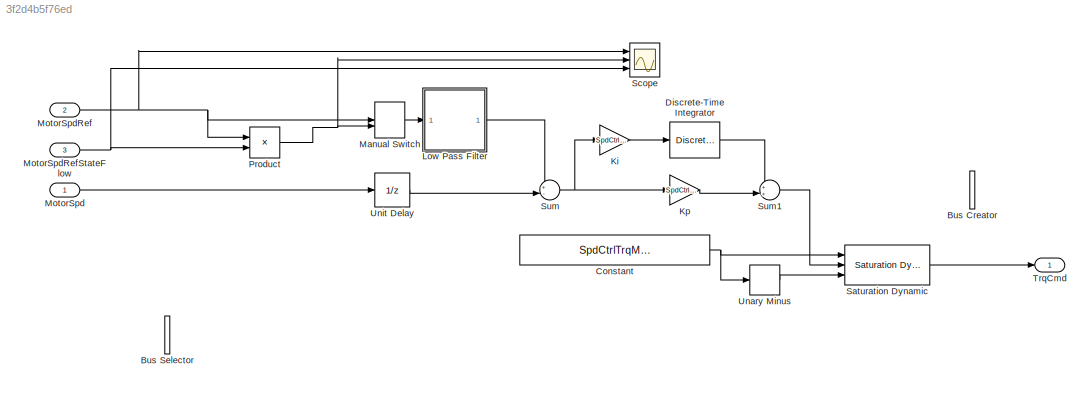
MODEL slx_3f2d4b5f76ed
KIND model
CONFIG AbsTol = auto
CONFIG EnableMultiTasking = off
CONFIG FixedStep = ContIntTime
CONFIG MaxStep = auto
CONFIG MinStep = auto
CONFIG RelTol = 1e-3
CONFIG SampleTimeConstraint = Unconstrained
CONFIG SolverName = FixedStepDiscrete
CONFIG StartTime = 0.0
CONFIG StopTime = 120
BLOCK [BusCreator] Bus Creator
  Commented = on
  DisplayOption = bar
  InheritFromInputs = on
  Inputs = 2
  Ports = [2, 1]
BLOCK [BusSelector] Bus Selector
  Commented = on
  OutputSignals = signal1,signal2
  Ports = [1, 2]
BLOCK [Constant] Constant
  Value = SpdCtrlTrqMax
BLOCK [DiscreteIntegrator] Discrete-Time Integrator
  ICPrevOutput = DiscIntNeverNeededParam
  ICPrevScaledInput = DiscIntNeverNeededParam
  InitialConditionSetting = Auto
  LimitOutput = on
  LowerSaturationLimit = -40
  Ports = [1, 1]
  SampleTime = -1
  UpperSaturationLimit = 40
BLOCK [Gain] Ki
  Gain = SpdCtrlKi
BLOCK [Gain] Kp
  Gain = SpdCtrlKp
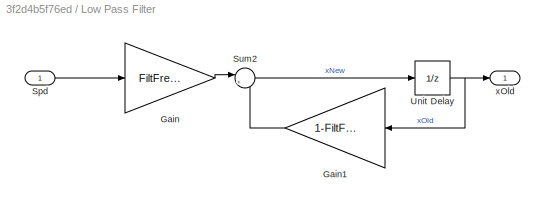
BLOCK [SubSystem] Low Pass Filter
  Ports = [1, 1]
  RequestExecContextInheritance = off
BLOCK [Gain] Low Pass Filter/Gain
  Gain = FiltFreq*2*pi*Ts
BLOCK [Gain] Low Pass Filter/Gain1
  Gain = 1-FiltFreq*2*pi*Ts
BLOCK [Inport] Low Pass Filter/Spd
BLOCK [Sum] Low Pass Filter/Sum2
  Inputs = |++
  Ports = [2, 1]
BLOCK [UnitDelay] Low Pass Filter/Unit Delay
  HasFrameUpgradeWarning = on
  SampleTime = -1
BLOCK [Outport] Low Pass Filter/xOld
BLOCK [ManualSwitch] Manual Switch
  CurrentSetting = 0
BLOCK [Inport] MotorSpd
  AttributesFormatString = %<Unit>
  NameLocation = left
  OutDataTypeStr = single
  Unit = rpm
BLOCK [Inport] MotorSpdRef
  OutDataTypeStr = single
  Port = 2
BLOCK [Inport] MotorSpdRefStateFlow
  OutDataTypeStr = single
  Port = 3
BLOCK [Product] Product
  OutDataTypeStr = single
  Ports = [2, 1]
BLOCK [Reference] Saturation Dynamic  REF=simulink/Discontinuities/Saturation
Dynamic
  Ports = [3, 1]
  SourceBlock = simulink/Discontinuities/Saturation\nDynamic
  SourceProductBaseCode = SL
  SourceType = Saturation Dynamic
BLOCK [Scope] Scope
  Floating = off
  NumInputPorts = 3
  Ports = [3]
  ScopeSpecificationString = Simulink.scopes.TimeScopeBlockCfg('CurrentConfiguration', extmgr.ConfigurationSet(extmgr.Configuration('Core','General UI',true),extmgr.Configuration('Core','Source UI',true),extmgr.Configuration('Sources','WiredSimulink',true),extmgr.Configuration('Visuals','Time Domain',true,'SerializedDisplays',{struct('MinYLimReal','-705.97217','MaxYLimReal','6353.74951','YLabelReal','','MinYLimMag',' 0.00000'...<+2767ch>
BLOCK [Sum] Sum
  Inputs = +-|
  Ports = [2, 1]
BLOCK [Sum] Sum1
  Inputs = ++|
  Ports = [2, 1]
BLOCK [Outport] TrqCmd
  AttributesFormatString = %<Unit>
  NameLocation = right
  OutDataTypeStr = single
  SignalType = real
  Unit = N*m
  VectorParamsAs1DForOutWhenUnconnected = off
BLOCK [UnaryMinus] Unary Minus
BLOCK [UnitDelay] Unit Delay
  HasFrameUpgradeWarning = on
  SampleTime = -1
NET Constant:1 -> Saturation Dynamic:1, Unary Minus:1
LINE Discrete-Time Integrator:1 -> Sum1:1
LINE Ki:1 -> Discrete-Time Integrator:1
LINE Kp:1 -> Sum1:2
LINE Low Pass Filter/Gain1:1 -> Low Pass Filter/Sum2:2
LINE Low Pass Filter/Gain:1 -> Low Pass Filter/Sum2:1
LINE Low Pass Filter/Spd:1 -> Low Pass Filter/Gain:1
LINE Low Pass Filter/Sum2:1 -> Low Pass Filter/Unit Delay:1
NET Low Pass Filter/Unit Delay:1 -> Low Pass Filter/Gain1:1, Low Pass Filter/xOld:1
LINE Low Pass Filter:1 -> Sum:1
LINE Manual Switch:1 -> Low Pass Filter:1
LINE MotorSpd:1 -> Unit Delay:1
NET MotorSpdRef:1 -> Manual Switch:1, Product:1, Scope:1
NET MotorSpdRefStateFlow:1 -> Product:2, Scope:3
NET Product:1 -> Manual Switch:2, Scope:2
LINE Saturation Dynamic:1 -> TrqCmd:1
LINE Sum1:1 -> Saturation Dynamic:2
NET Sum:1 -> Ki:1, Kp:1
LINE Unary Minus:1 -> Saturation Dynamic:3
LINE Unit Delay:1 -> Sum:2
note: NET lines group one-source signal fan-out (src -> all destinations, sorted); 1:1 wires keep LINE
